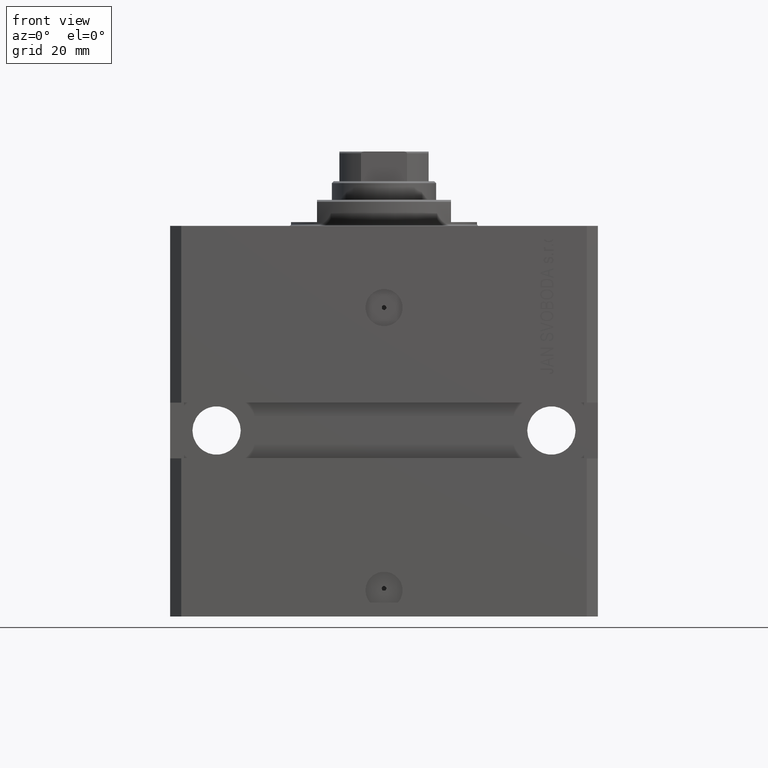
[diagram: clean part render]
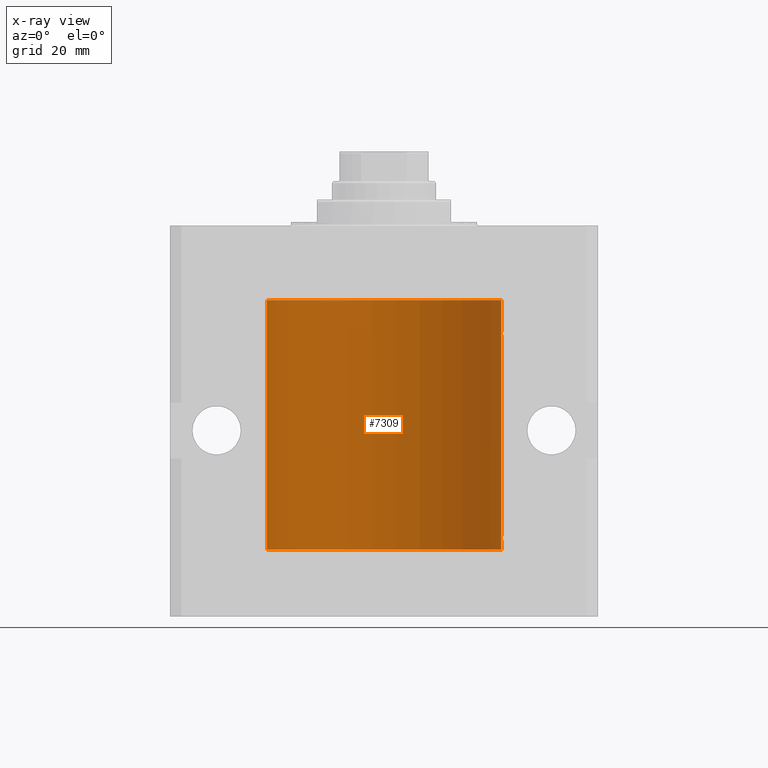
[diagram: x-ray — body ghosted, one internal face saturated and labeled with its STEP entity id]
A machine part, front view, then the same camera in x-ray: the body is ghosted and one INTERNAL B-rep face — a face not visible from any outside direction — is saturated and labeled: STEP entity #7309.
In plain terms, the highlighted cylindrical surface (partial cylindrical patch) has radius 31.5 mm, axis along (0, 0, 1).
Its self-contained STEP definition (entity closure, byte-faithful):
#1165 = CARTESIAN_POINT ( 'NONE',  ( -31.50000000000000000, 3.857637417314162689E-15, -87.09999999999999432 ) ) ;
#1284 = VECTOR ( 'NONE', #23980, 1000.000000000000000 ) ;
#1493 = CARTESIAN_POINT ( 'NONE',  ( 31.49527883250257432, 0.5574151849338060405, -29.32638608454755058 ) ) ;
#2229 = CARTESIAN_POINT ( 'NONE',  ( 31.49379899281762363, 0.6249999999996151967, -28.83697036533062885 ) ) ;
#2327 = CARTESIAN_POINT ( 'NONE',  ( 31.50000000000006395, 3.442404531757459093E-13, -28.37499999999677058 ) ) ;
#2658 = EDGE_CURVE ( 'NONE', #27977, #34571, #14951, .T. ) ;
#3080 = EDGE_LOOP ( 'NONE', ( #8879, #36043, #45586, #6661, #5121, #43337, #23428, #47374, #40205, #27377 ) ) ;
#3232 = CARTESIAN_POINT ( 'NONE',  ( 31.50000000000000000, 0.1631291455194407158, -83.37500000000014211 ) ) ;
#3579 = DIRECTION ( 'NONE',  ( 1.000000000000000000, 0.000000000000000000, 0.000000000000000000 ) ) ;
#4086 = DIRECTION ( 'NONE',  ( -0.000000000000000000, -0.000000000000000000, 1.000000000000000000 ) ) ;
#4188 = EDGE_CURVE ( 'NONE', #17640, #32360, #30471, .T. ) ;
#5001 = CARTESIAN_POINT ( 'NONE',  ( 31.50000000000000000, -2.492939093807799249E-15, -84.62499999999998579 ) ) ;
#5121 = ORIENTED_EDGE ( 'NONE', *, *, #42101, .T. ) ;
#5493 = CARTESIAN_POINT ( 'NONE',  ( 31.49851501686590893, 0.3150934959385818801, -84.54594721883857744 ) ) ;
#5682 = CARTESIAN_POINT ( 'NONE',  ( 31.50000000000006395, 3.442404755096224483E-13, -83.37499999999675993 ) ) ;
#5960 = AXIS2_PLACEMENT_3D ( 'NONE', #22017, #14163, #44223 ) ;
#6136 = CARTESIAN_POINT ( 'NONE',  ( 31.50000000000000000, 0.000000000000000000, -87.09999999999999432 ) ) ;
#6661 = ORIENTED_EDGE ( 'NONE', *, *, #4188, .T. ) ;
#7202 = AXIS2_PLACEMENT_3D ( 'NONE', #10705, #26443, #3579 ) ;
#7309 = ADVANCED_FACE ( 'NONE', ( #41523 ), #19317, .F. ) ;
#7405 = CARTESIAN_POINT ( 'NONE',  ( 31.49526225382467359, 0.5586305680866429091, -83.67476160622149450 ) ) ;
#8025 = DIRECTION ( 'NONE',  ( -0.000000000000000000, -0.000000000000000000, 1.000000000000000000 ) ) ;
#8060 = CARTESIAN_POINT ( 'NONE',  ( 31.49379899281745665, 0.6250000000082825968, -83.99999999999904787 ) ) ;
#8383 = CARTESIAN_POINT ( 'NONE',  ( 31.50000000000000000, -1.286676774952591455E-15, -29.62500000000000000 ) ) ;
#8879 = ORIENTED_EDGE ( 'NONE', *, *, #43733, .F. ) ;
#9426 = CARTESIAN_POINT ( 'NONE',  ( 31.50000000000000000, 0.08261130139621999935, -84.62499999999995737 ) ) ;
#10079 = CARTESIAN_POINT ( 'NONE',  ( 31.49379899281745665, 0.6250000000082756024, -28.99999999999905853 ) ) ;
#10161 = VECTOR ( 'NONE', #18643, 1000.000000000000000 ) ;
#10705 = CARTESIAN_POINT ( 'NONE',  ( 0.000000000000000000, 0.000000000000000000, -20.00000000000000355 ) ) ;
#12363 = CARTESIAN_POINT ( 'NONE',  ( 31.49379899281760942, 0.6250000000003405054, -84.16310352862699062 ) ) ;
#12484 = VERTEX_POINT ( 'NONE', #6136 ) ;
#12610 = CARTESIAN_POINT ( 'NONE',  ( 31.49966575203785268, 0.1636755595825563903, -84.60873030821188934 ) ) ;
#12666 = CARTESIAN_POINT ( 'NONE',  ( 31.50000000000000000, 0.000000000000000000, -87.09999999999999432 ) ) ;
#12901 = B_SPLINE_CURVE_WITH_KNOTS ( 'NONE', 3,
 ( #10079, #2229, #17465, #43099, #28048, #13531 ),
 .UNSPECIFIED., .F., .F.,
 ( 4, 2, 4 ),
 ( 0.0009772631991206452359, 0.001465673424414174614, 0.001954083649707703992 ),
 .UNSPECIFIED. ) ;
#13079 = CARTESIAN_POINT ( 'NONE',  ( 31.49379899281745665, 0.6250000000082756024, -28.99999999999905853 ) ) ;
#13531 = CARTESIAN_POINT ( 'NONE',  ( 31.50000000000006395, 3.442404531757459093E-13, -28.37499999999677058 ) ) ;
#14025 = VERTEX_POINT ( 'NONE', #2327 ) ;
#14163 = DIRECTION ( 'NONE',  ( 0.000000000000000000, 0.000000000000000000, 1.000000000000000000 ) ) ;
#14585 = VECTOR ( 'NONE', #42153, 1000.000000000000000 ) ;
#14951 = LINE ( 'NONE', #44773, #10161 ) ;
#16020 = VERTEX_POINT ( 'NONE', #13079 ) ;
#17242 = EDGE_CURVE ( 'NONE', #16020, #14025, #12901, .T. ) ;
#17465 = CARTESIAN_POINT ( 'NONE',  ( 31.49526225382467359, 0.5586305680866376910, -28.67476160622149806 ) ) ;
#17640 = VERTEX_POINT ( 'NONE', #35769 ) ;
#18643 = DIRECTION ( 'NONE',  ( -0.000000000000000000, -0.000000000000000000, 1.000000000000000000 ) ) ;
#19087 = LINE ( 'NONE', #38551, #20431 ) ;
#19317 = CYLINDRICAL_SURFACE ( 'NONE', #41007, 31.50000000000000000 ) ;
#19410 = VERTEX_POINT ( 'NONE', #42751 ) ;
#19988 = CARTESIAN_POINT ( 'NONE',  ( 31.49527883250257432, 0.5574151849338155884, -84.32638608454756479 ) ) ;
#20221 = EDGE_CURVE ( 'NONE', #14025, #19410, #42729, .T. ) ;
#20431 = VECTOR ( 'NONE', #8025, 1000.000000000000000 ) ;
#20530 = CARTESIAN_POINT ( 'NONE',  ( 31.50000000000000000, -1.286676774952591455E-15, -29.62500000000000000 ) ) ;
#22017 = CARTESIAN_POINT ( 'NONE',  ( 0.000000000000000000, 0.000000000000000000, -87.09999999999999432 ) ) ;
#23139 = CARTESIAN_POINT ( 'NONE',  ( 31.49966575203784558, 0.1636755595825546972, -29.60873030821186802 ) ) ;
#23161 = CARTESIAN_POINT ( 'NONE',  ( 31.50000000000000000, 0.000000000000000000, -87.09999999999999432 ) ) ;
#23428 = ORIENTED_EDGE ( 'NONE', *, *, #38716, .T. ) ;
#23980 = DIRECTION ( 'NONE',  ( -0.000000000000000000, -0.000000000000000000, 1.000000000000000000 ) ) ;
#24170 = CARTESIAN_POINT ( 'NONE',  ( 31.49379899281745665, 0.6250000000082825968, -83.99999999999904787 ) ) ;
#25620 = CARTESIAN_POINT ( 'NONE',  ( 31.49379899281762363, 0.6249999999996236344, -83.83697036533064306 ) ) ;
#26443 = DIRECTION ( 'NONE',  ( 0.000000000000000000, 0.000000000000000000, 1.000000000000000000 ) ) ;
#26704 = DIRECTION ( 'NONE',  ( 1.000000000000000000, 0.000000000000000000, 0.000000000000000000 ) ) ;
#27075 = CARTESIAN_POINT ( 'NONE',  ( 31.49379899281760231, 0.6250000000003351763, -29.16310352862698352 ) ) ;
#27377 = ORIENTED_EDGE ( 'NONE', *, *, #46104, .T. ) ;
#27977 = VERTEX_POINT ( 'NONE', #5682 ) ;
#28048 = CARTESIAN_POINT ( 'NONE',  ( 31.50000000000000000, 0.1631291455194386619, -28.37500000000015277 ) ) ;
#28311 = EDGE_CURVE ( 'NONE', #12484, #17640, #29836, .T. ) ;
#28865 = EDGE_CURVE ( 'NONE', #12484, #46915, #48417, .T. ) ;
#29836 = LINE ( 'NONE', #23161, #14585 ) ;
#30289 = CARTESIAN_POINT ( 'NONE',  ( -31.50000000000000000, 3.857637417314162689E-15, -20.00000000000000355 ) ) ;
#30471 = B_SPLINE_CURVE_WITH_KNOTS ( 'NONE', 3,
 ( #5001, #9426, #12610, #5493, #43413, #19988, #12363, #24170 ),
 .UNSPECIFIED., .F., .F.,
 ( 4, 2, 2, 4 ),
 ( 2.422664849601941982E-18, 0.0002443157997801665674, 0.0004886315995603306411, 0.0009772631991206588969 ),
 .UNSPECIFIED. ) ;
#31503 = CARTESIAN_POINT ( 'NONE',  ( 31.49770674525947101, 0.3844410175904570126, -29.49948347834465068 ) ) ;
#32360 = VERTEX_POINT ( 'NONE', #8060 ) ;
#33911 = CIRCLE ( 'NONE', #7202, 31.50000000000000000 ) ;
#34112 = CARTESIAN_POINT ( 'NONE',  ( 0.000000000000000000, 0.000000000000000000, -87.09999999999999432 ) ) ;
#34571 = VERTEX_POINT ( 'NONE', #20530 ) ;
#35203 = CARTESIAN_POINT ( 'NONE',  ( 31.49851501686590893, 0.3150934959385772727, -29.54594721883858099 ) ) ;
#35769 = CARTESIAN_POINT ( 'NONE',  ( 31.50000000000000000, -2.492939093807799249E-15, -84.62499999999998579 ) ) ;
#36043 = ORIENTED_EDGE ( 'NONE', *, *, #28865, .F. ) ;
#37201 = CARTESIAN_POINT ( 'NONE',  ( 31.49379899281745665, 0.6250000000082825968, -83.99999999999904787 ) ) ;
#37425 = VERTEX_POINT ( 'NONE', #30289 ) ;
#38551 = CARTESIAN_POINT ( 'NONE',  ( -31.50000000000000000, 3.857637417314162689E-15, -87.09999999999999432 ) ) ;
#38716 = EDGE_CURVE ( 'NONE', #34571, #16020, #40172, .T. ) ;
#40172 = B_SPLINE_CURVE_WITH_KNOTS ( 'NONE', 3,
 ( #8383, #46544, #23139, #35203, #31503, #1493, #27075, #45820 ),
 .UNSPECIFIED., .F., .F.,
 ( 4, 2, 2, 4 ),
 ( 1.824539386392990385E-18, 0.0002443157997801608753, 0.0004886315995603199075, 0.0009772631991206452359 ),
 .UNSPECIFIED. ) ;
#40205 = ORIENTED_EDGE ( 'NONE', *, *, #20221, .T. ) ;
#40678 = CARTESIAN_POINT ( 'NONE',  ( 31.49853627283156499, 0.3253078817183396310, -83.44140989403643971 ) ) ;
#41007 = AXIS2_PLACEMENT_3D ( 'NONE', #34112, #4086, #26704 ) ;
#41523 = FACE_OUTER_BOUND ( 'NONE', #3080, .T. ) ;
#42101 = EDGE_CURVE ( 'NONE', #32360, #27977, #48083, .T. ) ;
#42153 = DIRECTION ( 'NONE',  ( -0.000000000000000000, -0.000000000000000000, 1.000000000000000000 ) ) ;
#42729 = LINE ( 'NONE', #12666, #1284 ) ;
#42751 = CARTESIAN_POINT ( 'NONE',  ( 31.50000000000000000, 0.000000000000000000, -20.00000000000000355 ) ) ;
#43099 = CARTESIAN_POINT ( 'NONE',  ( 31.49853627283156499, 0.3253078817183363558, -28.44140989403645747 ) ) ;
#43337 = ORIENTED_EDGE ( 'NONE', *, *, #2658, .T. ) ;
#43413 = CARTESIAN_POINT ( 'NONE',  ( 31.49770674525946390, 0.3844410175904657834, -84.49948347834464357 ) ) ;
#43733 = EDGE_CURVE ( 'NONE', #46915, #37425, #19087, .T. ) ;
#44121 = CARTESIAN_POINT ( 'NONE',  ( 31.50000000000006395, 3.442404755096224483E-13, -83.37499999999675993 ) ) ;
#44223 = DIRECTION ( 'NONE',  ( 1.000000000000000000, 0.000000000000000000, 0.000000000000000000 ) ) ;
#44773 = CARTESIAN_POINT ( 'NONE',  ( 31.50000000000000000, 0.000000000000000000, -87.09999999999999432 ) ) ;
#45586 = ORIENTED_EDGE ( 'NONE', *, *, #28311, .T. ) ;
#45820 = CARTESIAN_POINT ( 'NONE',  ( 31.49379899281745665, 0.6250000000082756024, -28.99999999999905853 ) ) ;
#46104 = EDGE_CURVE ( 'NONE', #19410, #37425, #33911, .T. ) ;
#46544 = CARTESIAN_POINT ( 'NONE',  ( 31.50000000000000711, 0.08261130139621915280, -29.62499999999999289 ) ) ;
#46915 = VERTEX_POINT ( 'NONE', #1165 ) ;
#47374 = ORIENTED_EDGE ( 'NONE', *, *, #17242, .T. ) ;
#48083 = B_SPLINE_CURVE_WITH_KNOTS ( 'NONE', 3,
 ( #37201, #25620, #7405, #40678, #3232, #44121 ),
 .UNSPECIFIED., .F., .F.,
 ( 4, 2, 4 ),
 ( 0.0009772631991206588969, 0.001465673424414194563, 0.001954083649707730446 ),
 .UNSPECIFIED. ) ;
#48417 = CIRCLE ( 'NONE', #5960, 31.50000000000000000 ) ;